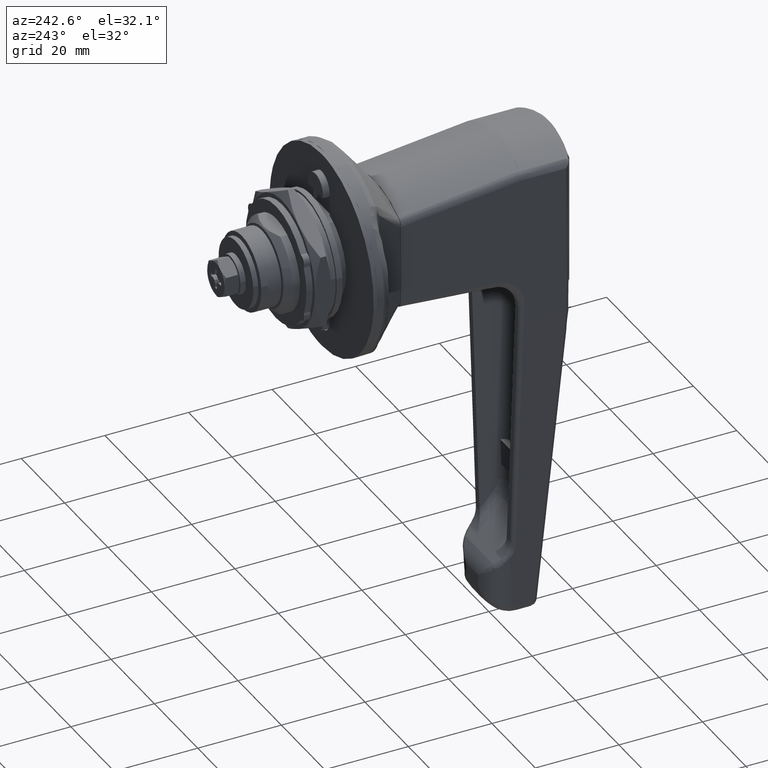
[diagram: clean part render]
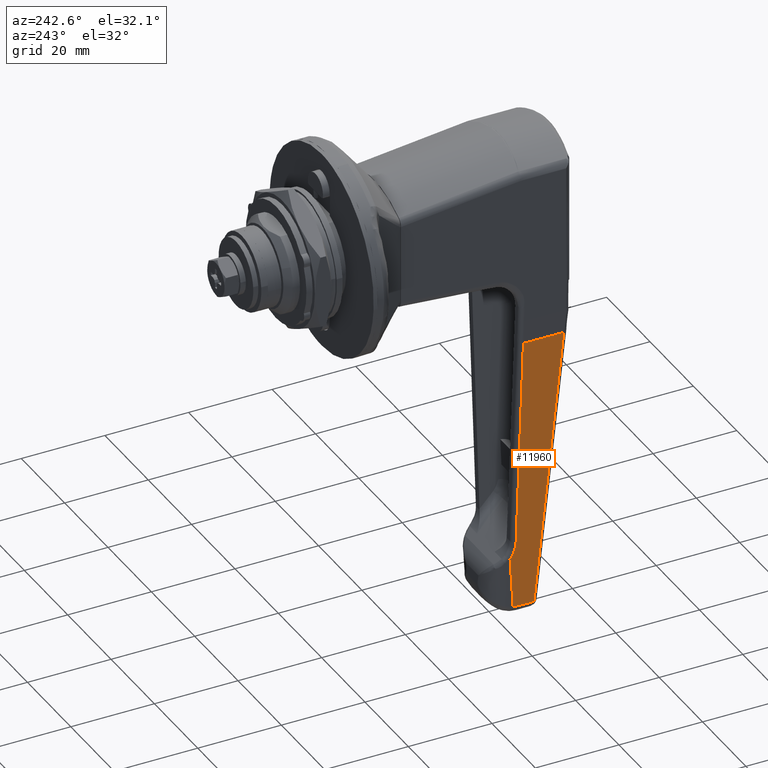
[diagram: same view with one face highlighted and labeled with its STEP entity id]
A machine part, auxiliary view. The second image highlights one B-rep face of the part: STEP entity #11960.
In plain terms, the highlighted face is a freeform B-spline surface patch.
Its self-contained STEP definition (entity closure, byte-faithful):
#5642=CARTESIAN_POINT('',(-42.0,12.073825769527300,-28.897936895261701));
#5643=VERTEX_POINT('',#5642);
#5703=CARTESIAN_POINT('',(-42.0,8.694515463715879,-80.579964860897306));
#5704=VERTEX_POINT('',#5703);
#5718=CARTESIAN_POINT('',(-42.0,12.073825769527300,-28.897936895261701));
#5719=CARTESIAN_POINT('',(-42.0,8.694515463715879,-80.579964860897306));
#5720=QUASI_UNIFORM_CURVE('',1,(#5718,#5719),.UNSPECIFIED.,.F.,.U.);
#5721=EDGE_CURVE('',#5643,#5704,#5720,.T.);
#5792=CARTESIAN_POINT('',(-40.691652699709749,8.428069505302149,-84.654899160476404));
#5793=VERTEX_POINT('',#5792);
#5809=CARTESIAN_POINT('',(-42.0,8.694515463715970,-80.579964860897306));
#5810=CARTESIAN_POINT('',(-42.0,8.547558896826997,-82.827468852060392));
#5811=CARTESIAN_POINT('',(-40.691652699709799,8.428069505302180,-84.654899160476404));
#5819=(BOUNDED_CURVE()B_SPLINE_CURVE(2,(#5809,#5810,#5811),.UNSPECIFIED.,.F.,.U.)CURVE()GEOMETRIC_REPRESENTATION_ITEM()QUASI_UNIFORM_CURVE()RATIONAL_B_SPLINE_CURVE((1.0,0.952127418682943,1.0))REPRESENTATION_ITEM(''));
#5820=EDGE_CURVE('',#5704,#5793,#5819,.T.);
#8221=CARTESIAN_POINT('',(-41.857309074168249,7.601217082741380,-97.300500232609494));
#8222=VERTEX_POINT('',#8221);
#8377=CARTESIAN_POINT('',(-43.0,7.592145216312200,-97.439242287070698));
#8378=VERTEX_POINT('',#8377);
#8392=CARTESIAN_POINT('',(-41.857309074168249,7.601217082741321,-97.300500232609409));
#8393=CARTESIAN_POINT('',(-42.044944047653502,7.598196396070007,-97.346697592098323));
#8394=CARTESIAN_POINT('',(-42.423050191288212,7.593675894850305,-97.415832607623116));
#8395=CARTESIAN_POINT('',(-42.806731902380577,7.592145216312201,-97.439242287070712));
#8396=CARTESIAN_POINT('',(-43.0,7.592145216312200,-97.439242287070698));
#8397=B_SPLINE_CURVE_WITH_KNOTS('',3,(#8392,#8393,#8394,#8395,#8396),.UNSPECIFIED.,.F.,.U.,(4,1,4),(0.0,0.500000000000000,1.0),.UNSPECIFIED.);
#8398=EDGE_CURVE('',#8222,#8378,#8397,.T.);
#8428=CARTESIAN_POINT('',(-46.810766094548299,7.592145216312200,-97.439242287070698));
#8429=VERTEX_POINT('',#8428);
#8459=CARTESIAN_POINT('',(-43.0,7.592145216312200,-97.439242287070698));
#8460=CARTESIAN_POINT('',(-46.810766094548299,7.592145216312200,-97.439242287070698));
#8461=QUASI_UNIFORM_CURVE('',1,(#8459,#8460),.UNSPECIFIED.,.F.,.U.);
#8462=EDGE_CURVE('',#8378,#8429,#8461,.T.);
#8725=CARTESIAN_POINT('',(-46.852808272678203,7.607287954509580,-97.207654374694698));
#8726=VERTEX_POINT('',#8725);
#8740=CARTESIAN_POINT('',(-46.810766094548299,7.592145216312200,-97.439242287070698));
#8741=CARTESIAN_POINT('',(-46.833181107994022,7.597093499282265,-97.363564922254270));
#8742=CARTESIAN_POINT('',(-46.847095688982492,7.602142254482201,-97.286350969162669));
#8743=CARTESIAN_POINT('',(-46.852808272678203,7.607287954509570,-97.207654374694911));
#8744=QUASI_UNIFORM_CURVE('',3,(#8740,#8741,#8742,#8743),.UNSPECIFIED.,.F.,.U.);
#8745=EDGE_CURVE('',#8429,#8726,#8744,.T.);
#9469=CARTESIAN_POINT('',(-40.691652699709671,8.428069505302171,-84.654899160476162));
#9470=CARTESIAN_POINT('',(-40.794435133139793,8.355161308735349,-85.769932440317476));
#9471=CARTESIAN_POINT('',(-40.897217566569893,8.282253112168529,-86.884965720158775));
#9472=CARTESIAN_POINT('',(-41.0,8.209344915601710,-87.999999000000088));
#9473=CARTESIAN_POINT('',(-41.285769691389469,8.006635637981608,-91.100166077536528));
#9474=CARTESIAN_POINT('',(-41.571539382778859,7.803926360361499,-94.200333155072897));
#9475=CARTESIAN_POINT('',(-41.857309074168157,7.601217082741362,-97.300500232609295));
#9476=B_SPLINE_CURVE_WITH_KNOTS('',3,(#9469,#9470,#9471,#9472,#9473,#9474,#9475),.UNSPECIFIED.,.F.,.U.,(4,3,4),(0.435166360910611,0.473723399625362,0.580924919249761),.UNSPECIFIED.);
#9477=EDGE_CURVE('',#5793,#8222,#9476,.T.);
#10102=CARTESIAN_POINT('',(-51.636799094111687,12.073825769527300,-28.897936895261701));
#10103=VERTEX_POINT('',#10102);
#10324=CARTESIAN_POINT('',(-46.852808272678203,7.607287954509580,-97.207654374694698));
#10325=CARTESIAN_POINT('',(-49.346518719111984,9.853537041845728,-62.854281158317264));
#10326=CARTESIAN_POINT('',(-51.636799094111673,12.073825769527280,-28.897936895261850));
#10334=(BOUNDED_CURVE()B_SPLINE_CURVE(2,(#10324,#10325,#10326),.UNSPECIFIED.,.F.,.U.)CURVE()GEOMETRIC_REPRESENTATION_ITEM()QUASI_UNIFORM_CURVE()RATIONAL_B_SPLINE_CURVE((1.0,0.999266857121281,1.0))REPRESENTATION_ITEM(''));
#10335=EDGE_CURVE('',#8726,#10103,#10334,.T.);
#11934=CARTESIAN_POINT('',(-42.0,12.073825769527300,-28.897936895261701));
#11935=CARTESIAN_POINT('',(-51.636799094111687,12.073825769527300,-28.897936895261701));
#11936=QUASI_UNIFORM_CURVE('',1,(#11934,#11935),.UNSPECIFIED.,.F.,.U.);
#11937=EDGE_CURVE('',#5643,#10103,#11936,.T.);
#11945=CARTESIAN_POINT('',(-52.183508851600337,12.297685646391519,-25.474299712081610));
#11946=CARTESIAN_POINT('',(-52.183508851600337,7.368285499725391,-100.862877019022700));
#11947=CARTESIAN_POINT('',(-40.144944018650683,12.297685646391519,-25.474299712081610));
#11948=CARTESIAN_POINT('',(-40.144944018650683,7.368285499725391,-100.862877019022700));
#11949=B_SPLINE_SURFACE_WITH_KNOTS('',1,1,((#11945,#11947),(#11946,#11948)),.UNSPECIFIED.,.F.,.F.,.U.,(2,2),(2,2),(0.0,75.549563692787686),(0.0,12.038564832949660),.UNSPECIFIED.);
#11950=ORIENTED_EDGE('',*,*,#11937,.F.);
#11951=ORIENTED_EDGE('',*,*,#5721,.T.);
#11952=ORIENTED_EDGE('',*,*,#5820,.T.);
#11953=ORIENTED_EDGE('',*,*,#9477,.T.);
#11954=ORIENTED_EDGE('',*,*,#8398,.T.);
#11955=ORIENTED_EDGE('',*,*,#8462,.T.);
#11956=ORIENTED_EDGE('',*,*,#8745,.T.);
#11957=ORIENTED_EDGE('',*,*,#10335,.T.);
#11958=EDGE_LOOP('',(#11950,#11951,#11952,#11953,#11954,#11955,#11956,#11957));
#11959=FACE_OUTER_BOUND('',#11958,.T.);
#11960=ADVANCED_FACE('',(#11959),#11949,.F.);